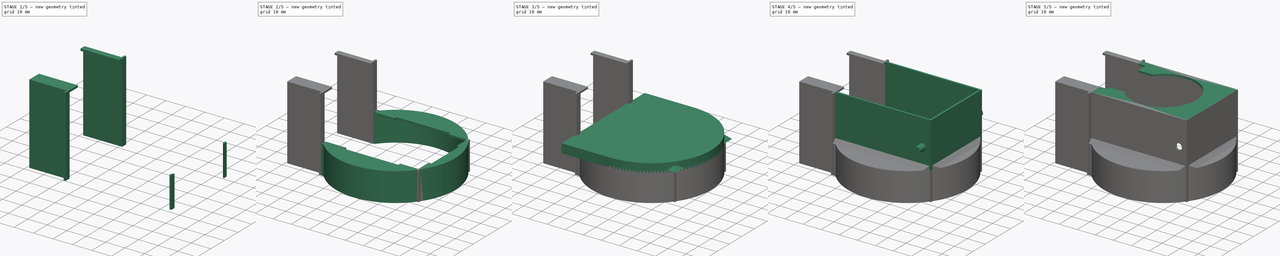
[diagram: build sequence overview — one tinted view per stage of 5, left to right]
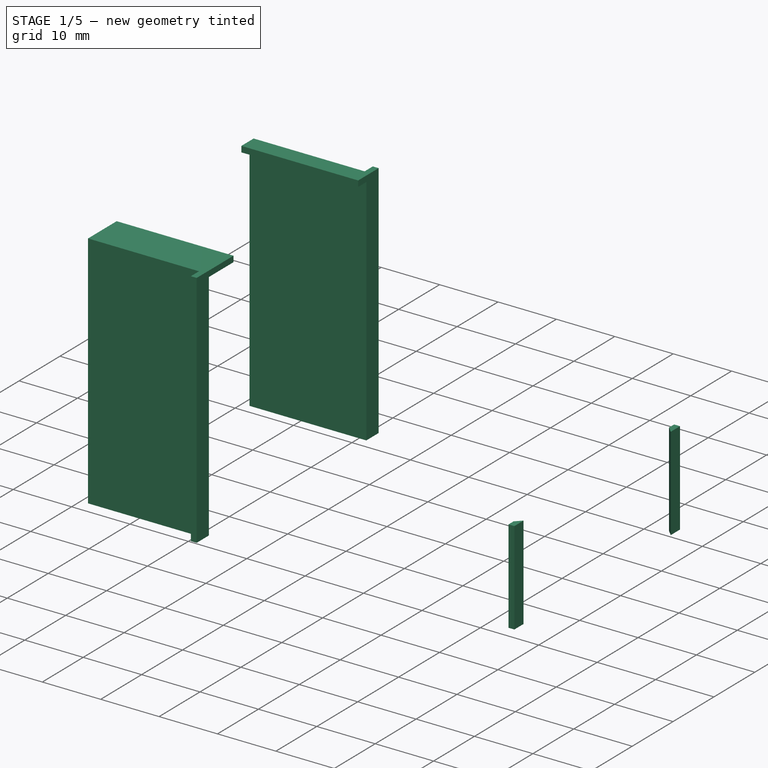
[diagram: stage 1 of 5 — iso view after this stage's code; geometry added in this stage tinted green]
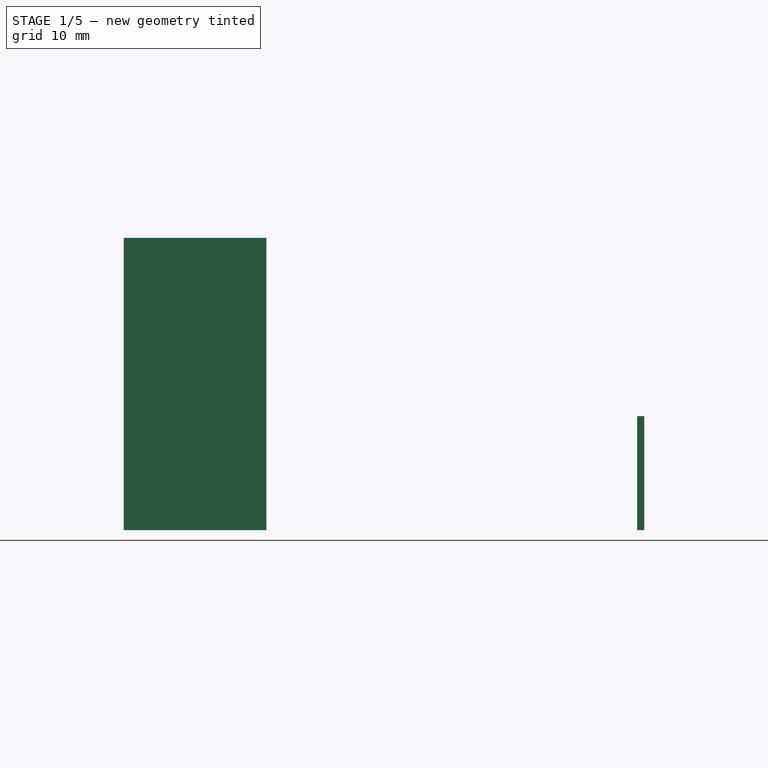
[diagram: stage 1 of 5 — front view after this stage's code; geometry added in this stage tinted green]
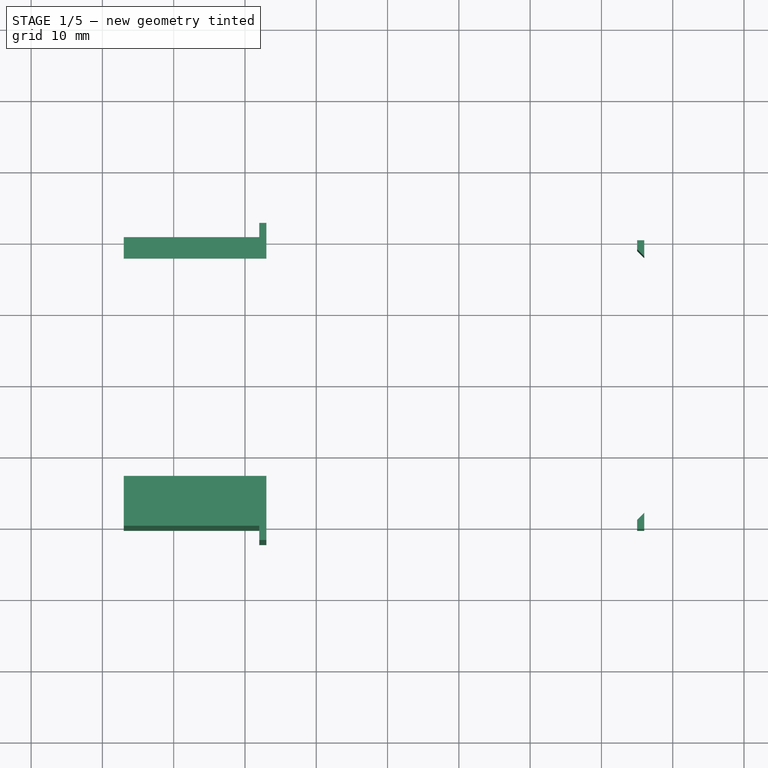
[diagram: stage 1 of 5 — top view after this stage's code; geometry added in this stage tinted green]
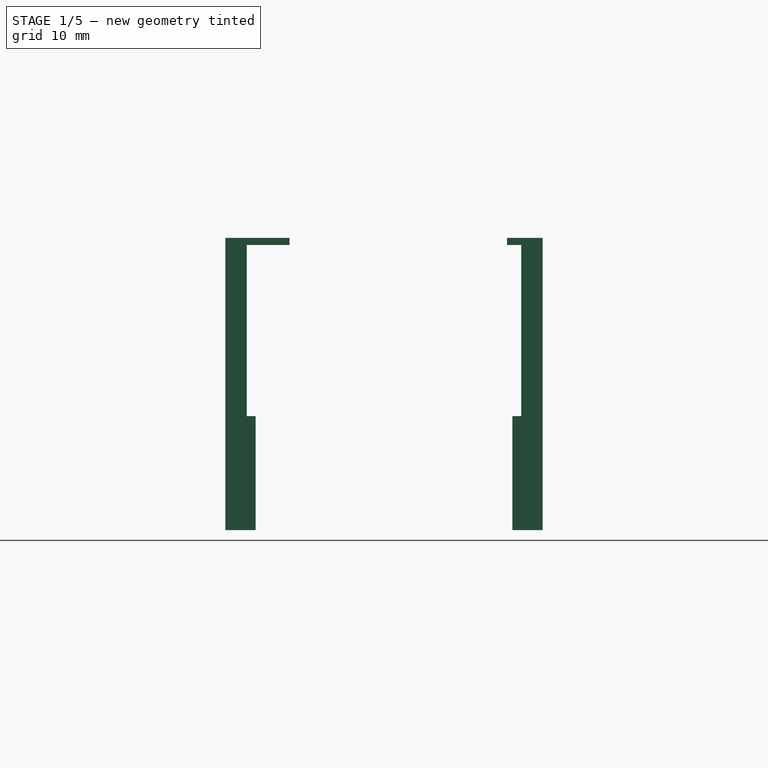
[diagram: stage 1 of 5 — right view after this stage's code; geometry added in this stage tinted green]
FCSTD DOCUMENT  (FreeCAD 0.19R24291 (Git))
Label: shroud
License: All rights reserved
LicenseURL: http://en.wikipedia.org/wiki/All_rights_reserved
objects: Sketcher::SketchObject×12, Part::Extrusion×10, Part::Compound×2, Part::Cut×1, Part::Sweep×1, Part::MultiCommon×1
note: 27 computed .brp shape members not serialized (recipe doc carries the construction recipe); baked Part::Feature solids carry a one-line shape summary decoded from their .brp

FEATURE [Sketcher::SketchObject] Sketch009
  FullyConstrained = true
  Placement = pos=(0,0,0) rot=(-1,0,0;3.14159rad)
  sketch-geometry (8):
    g0: LineSegment StartX=25 StartY=20.25 StartZ=0 EndX=26 EndY=20.25 EndZ=0
    g1: LineSegment StartX=26 StartY=20.25 StartZ=0 EndX=26 EndY=18 EndZ=0
    g2: LineSegment StartX=26 StartY=18 StartZ=0 EndX=25 EndY=19 EndZ=0
    g3: LineSegment StartX=25 StartY=19 StartZ=0 EndX=25 EndY=20.25 EndZ=0
    g4: LineSegment StartX=25 StartY=-19 StartZ=0 EndX=26 EndY=-18 EndZ=0
    g5: LineSegment StartX=26 StartY=-18 StartZ=0 EndX=26 EndY=-20.25 EndZ=0
    g6: LineSegment StartX=26 StartY=-20.25 StartZ=0 EndX=25 EndY=-20.25 EndZ=0
    g7: LineSegment StartX=25 StartY=-20.25 StartZ=0 EndX=25 EndY=-19 EndZ=0
  constraints (24):
    c: Coincident(g0,g1)
    c: Coincident(g1,g2)
    c: Coincident(g2,g3)
    c: Coincident(g3,g0)
    c: Horizontal(g0)
    c: Vertical(g1)
    c: Vertical(g3)
    c: Coincident(g4,g5)
    c: Coincident(g5,g6)
    c: Coincident(g6,g7)
    c: Coincident(g7,g4)
    c: Horizontal(g6)
    c: Vertical(g5)
    c: Vertical(g7)
    c: DistanceY(g5) = -20.25
    c: DistanceY(g0) = 20.25
    c: DistanceX(g0,g0) = 1
    c: DistanceX(g1) = 26
    c: Vertical(g4,g1)
    c: Vertical(g4,g2)
    c: DistanceY(g2) = 19
    c: DistanceY(g2,g2) = 1
    c: DistanceY(g7,g7) = 1.25
    c: DistanceY(g4,g4) = 1
FEATURE [Part::Extrusion] Extrude007
  Base = -> Sketch009
  Dir = (0,0,-1)
  DirMode = 2
  FaceMakerClass = Part::FaceMakerBullseye
  LengthFwd = 0
  LengthRev = 16
  Solid = true
  Symmetric = false
FEATURE [Sketcher::SketchObject] Sketch010
  FullyConstrained = true
  Placement = pos=(-27,0,0) rot=(-0.57735,0.57735,0.57735;4.18879rad)
  sketch-geometry (12):
    g0: LineSegment StartX=-19.25 StartY=0 StartZ=0 EndX=-19.25 EndY=40 EndZ=0
    g1: LineSegment StartX=-19.25 StartY=40 StartZ=0 EndX=-17.25 EndY=40 EndZ=0
    g2: LineSegment StartX=-17.25 StartY=40 StartZ=0 EndX=-17.25 EndY=41 EndZ=0
    g3: LineSegment StartX=-17.25 StartY=41 StartZ=0 EndX=-20.25 EndY=41 EndZ=0
    g4: LineSegment StartX=-20.25 StartY=41 StartZ=0 EndX=-20.25 EndY=0 EndZ=0
    g5: LineSegment StartX=-20.25 StartY=0 StartZ=0 EndX=-19.25 EndY=0 EndZ=0
    g6: LineSegment StartX=19.25 StartY=0 StartZ=0 EndX=19.25 EndY=40 EndZ=0
    g7: LineSegment StartX=19.25 StartY=40 StartZ=0 EndX=13.25 EndY=40 EndZ=0
    g8: LineSegment StartX=13.25 StartY=40 StartZ=0 EndX=13.25 EndY=41 EndZ=0
    g9: LineSegment StartX=13.25 StartY=41 StartZ=0 EndX=20.25 EndY=41 EndZ=0
    g10: LineSegment StartX=20.25 StartY=41 StartZ=0 EndX=20.25 EndY=0 EndZ=0
    g11: LineSegment StartX=20.25 StartY=0 StartZ=0 EndX=19.25 EndY=0 EndZ=0
  constraints (36):
    c: Vertical(g0)
    c: Coincident(g0,g1)
    c: Horizontal(g1)
    c: Coincident(g1,g2)
    c: Vertical(g2)
    c: Coincident(g2,g3)
    c: Horizontal(g3)
    c: Coincident(g3,g4)
    c: Vertical(g4)
    c: Coincident(g4,g5)
    c: Coincident(g5,g0)
    c: Vertical(g6)
    c: Coincident(g6,g7)
    c: Horizontal(g7)
    c: Coincident(g7,g8)
    c: Vertical(g8)
    c: Coincident(g8,g9)
    c: Horizontal(g9)
    c: Coincident(g9,g10)
    c: Vertical(g10)
    c: Coincident(g10,g11)
    c: Coincident(g11,g6)
    c: DistanceX(g0) = -19.25
    c: DistanceX(g5,g5) = 1
    c: DistanceY(g2,g2) = 1
    c: DistanceX(g6) = 19.25
    c: DistanceX(g11,g11) = 1
    c: Horizontal(g7,g1)
    c: Horizontal(g2,g8)
    c: DistanceX(g7,g7) = 6
    c: DistanceX(g1,g1) = 2
    c: Horizontal(g6,g0)
    c: Horizontal(g5)
    c: Horizontal(g11)
    c: DistanceY(g1) = 40
    c: PointOnObject(g0,g-1)
FEATURE [Part::Extrusion] Extrude008
  Base = -> Sketch010
  Dir = (-1,2e-16,-2e-16)
  DirMode = 2
  FaceMakerClass = Part::FaceMakerBullseye
  LengthFwd = 20
  LengthRev = 0
  Solid = true
  Symmetric = false
FEATURE [Sketcher::SketchObject] Sketch011
  FullyConstrained = true
  sketch-geometry (8):
    g0: LineSegment StartX=-27 StartY=19.25 StartZ=0 EndX=-27 EndY=22.25 EndZ=0
    g1: LineSegment StartX=-28 StartY=19.25 StartZ=0 EndX=-27 EndY=19.25 EndZ=0
    g2: LineSegment StartX=-27 StartY=-19.25 StartZ=0 EndX=-27 EndY=-22.25 EndZ=0
    g3: LineSegment StartX=-28 StartY=-19.25 StartZ=0 EndX=-27 EndY=-19.25 EndZ=0
    g4: LineSegment StartX=-28 StartY=19.25 StartZ=0 EndX=-28 EndY=22.25 EndZ=0
    g5: LineSegment StartX=-28 StartY=22.25 StartZ=0 EndX=-27 EndY=22.25 EndZ=0
    g6: LineSegment StartX=-28 StartY=-19.25 StartZ=0 EndX=-28 EndY=-22.25 EndZ=0
    g7: LineSegment StartX=-28 StartY=-22.25 StartZ=0 EndX=-27 EndY=-22.25 EndZ=0
  constraints (24):
    c: Vertical(g0)
    c: Coincident(g1,g0)
    c: Horizontal(g1)
    c: DistanceY(g0) = 19.25
    c: DistanceY(g0,g0) = 3
    c: DistanceX(g1,g1) = 1
    c: DistanceX(g0) = -27
    c: Vertical(g2)
    c: Coincident(g3,g2)
    c: Horizontal(g3)
    c: DistanceY(g2,g2) = 3
    c: DistanceY(g2) = -19.25
    c: Vertical(g0,g2)
    c: Vertical(g1,g3)
    c: Coincident(g1,g4)
    c: Vertical(g4)
    c: Coincident(g4,g5)
    c: Coincident(g5,g0)
    c: Horizontal(g5)
    c: Coincident(g3,g6)
    c: Vertical(g6)
    c: Coincident(g6,g7)
    c: Coincident(g7,g2)
    c: Horizontal(g7)
FEATURE [Part::Extrusion] Extrude009
  Base = -> Sketch011
  Dir = (0,0,1)
  DirMode = 2
  FaceMakerClass = Part::FaceMakerBullseye
  LengthFwd = 41
  LengthRev = 0
  Solid = true
  Symmetric = false
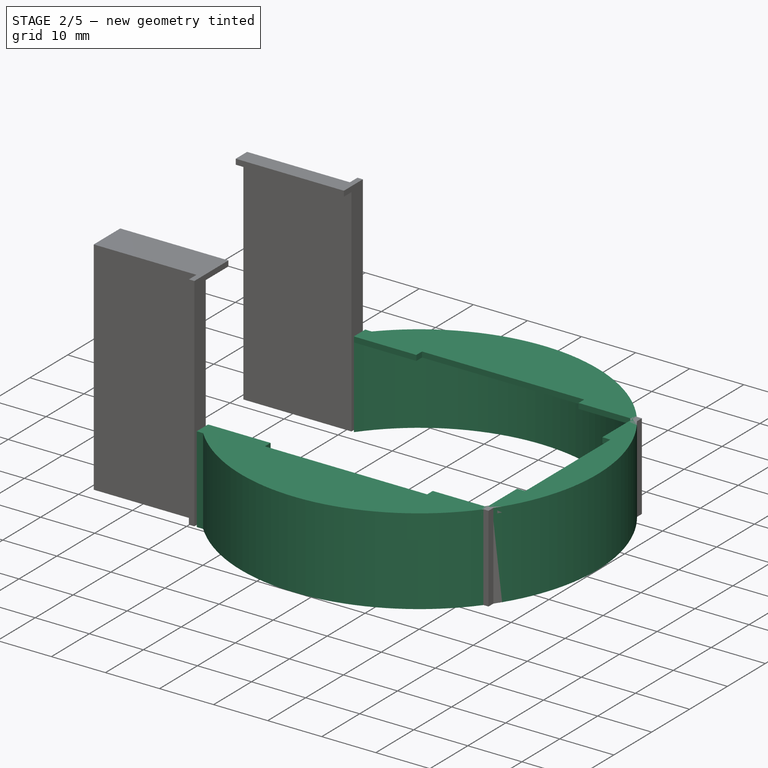
[diagram: stage 2 of 5 — iso view after this stage's code; geometry added in this stage tinted green]
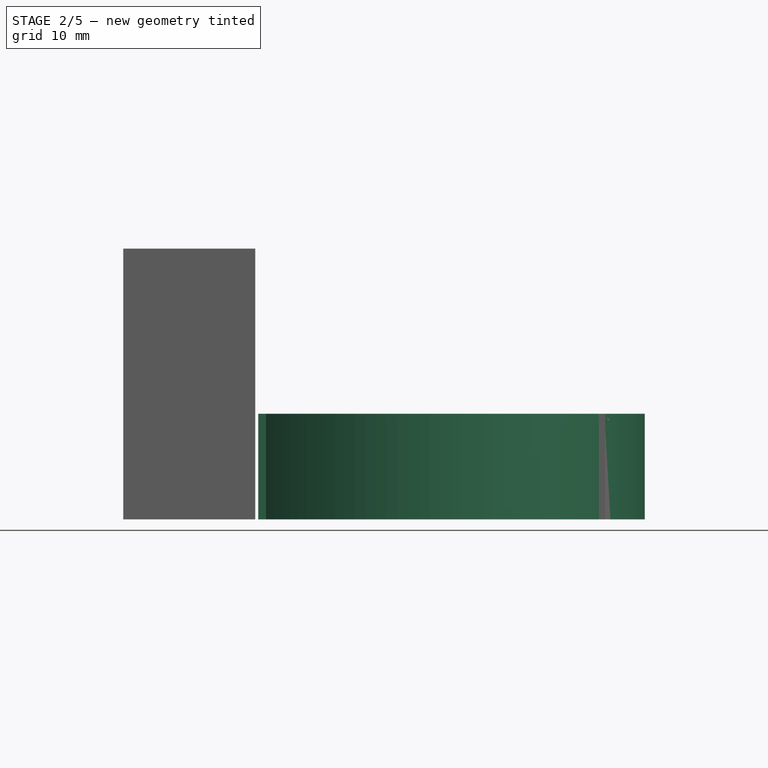
[diagram: stage 2 of 5 — front view after this stage's code; geometry added in this stage tinted green]
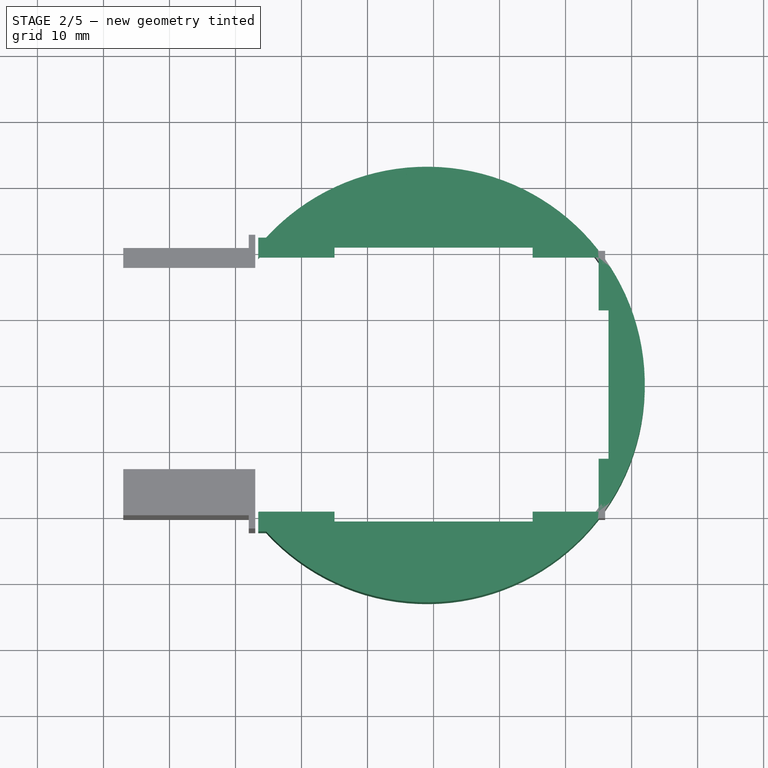
[diagram: stage 2 of 5 — top view after this stage's code; geometry added in this stage tinted green]
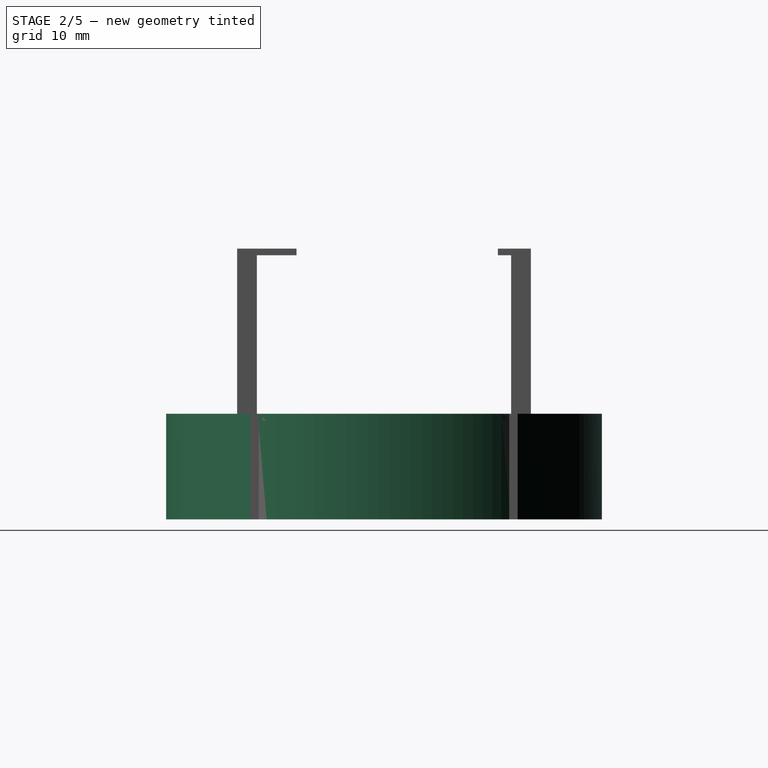
[diagram: stage 2 of 5 — right view after this stage's code; geometry added in this stage tinted green]
FEATURE [Sketcher::SketchObject] Sketch
  FullyConstrained = true
  sketch-geometry (6):
    g0: ArcOfCircle CenterX=-1 CenterY=0 CenterZ=0 NormalX=0 NormalY=0 NormalZ=1 AngleXU=0 Radius=32 StartAngle=3.78705 EndAngle=8.77932
    g1: ArcOfCircle CenterX=-1 CenterY=0 CenterZ=0 NormalX=0 NormalY=0 NormalZ=1 AngleXU=0 Radius=33 StartAngle=3.88153 EndAngle=8.68484
    g2: LineSegment StartX=-26.5624 StartY=22.25 StartZ=0 EndX=-26.5624 EndY=19.25 EndZ=0
    g3: LineSegment StartX=-26.5624 StartY=-22.25 StartZ=0 EndX=-26.5624 EndY=-19.25 EndZ=0
    g4: LineSegment StartX=-26.5624 StartY=22.25 StartZ=0 EndX=-25.3708 EndY=22.25 EndZ=0
    g5: LineSegment StartX=-26.5624 StartY=-22.25 StartZ=0 EndX=-25.3708 EndY=-22.25 EndZ=0
  constraints (19):
    c: Radius(g0) = 32
    c: DistanceY(g0,g0) = 38.5
    c: Vertical(g0,g0)
    c: Radius(g1) = 33
    c: Coincident(g2,g0)
    c: Coincident(g3,g0)
    c: PointOnObject(g0,g-1)
    c: DistanceX(g0) = -1
    c: Coincident(g1,g0)
    c: Vertical(g3)
    c: Vertical(g2)
    c: DistanceY(g2,g2) = 3
    c: Coincident(g4,g2)
    c: Coincident(g4,g1)
    c: Horizontal(g4)
    c: DistanceY(g3,g3) = 3
    c: Coincident(g5,g3)
    c: Coincident(g5,g1)
    c: Horizontal(g5)
FEATURE [Part::Extrusion] Extrude
  Base = -> Sketch
  Dir = (0,0,1)
  DirMode = 2
  FaceMakerClass = Part::FaceMakerBullseye
  LengthFwd = 16
  LengthRev = 0
  Solid = true
  Symmetric = false
FEATURE [Sketcher::SketchObject] Sketch001
  FullyConstrained = true
  Placement = pos=(0,0,15) rot=(0,0,1;0rad)
  sketch-geometry (18):
    g0: ArcOfCircle CenterX=-1 CenterY=0 CenterZ=0 NormalX=0 NormalY=0 NormalZ=1 AngleXU=0 Radius=33 StartAngle=3.82926 EndAngle=8.73711
    g1: LineSegment StartX=-15 StartY=19.25 StartZ=0 EndX=-15 EndY=20.75 EndZ=0
    g2: LineSegment StartX=-15 StartY=20.75 StartZ=0 EndX=15 EndY=20.75 EndZ=0
    g3: LineSegment StartX=15 StartY=20.75 StartZ=0 EndX=15 EndY=19.25 EndZ=0
    g4: LineSegment StartX=-26.5 StartY=19.25 StartZ=0 EndX=-15 EndY=19.25 EndZ=0
    g5: LineSegment StartX=15 StartY=19.25 StartZ=0 EndX=25 EndY=19.25 EndZ=0
    g6: LineSegment StartX=25 StartY=-19.25 StartZ=0 EndX=15 EndY=-19.25 EndZ=0
    g7: LineSegment StartX=15 StartY=-19.25 StartZ=0 EndX=15 EndY=-20.75 EndZ=0
    g8: LineSegment StartX=15 StartY=-20.75 StartZ=0 EndX=-15 EndY=-20.75 EndZ=0
    g9: LineSegment StartX=-15 StartY=-20.75 StartZ=0 EndX=-15 EndY=-19.25 EndZ=0
    g10: LineSegment StartX=-15 StartY=-19.25 StartZ=0 EndX=-26.5 EndY=-19.25 EndZ=0
    g11: LineSegment StartX=25 StartY=19.25 StartZ=0 EndX=25 EndY=11.25 EndZ=0
    g12: LineSegment StartX=25 StartY=11.25 StartZ=0 EndX=26.5 EndY=11.25 EndZ=0
    g13: LineSegment StartX=26.5 StartY=11.25 StartZ=0 EndX=26.5 EndY=-11.25 EndZ=0
    g14: LineSegment StartX=26.5 StartY=-11.25 StartZ=0 EndX=25 EndY=-11.25 EndZ=0
    g15: LineSegment StartX=25 StartY=-11.25 StartZ=0 EndX=25 EndY=-19.25 EndZ=0
    g16: LineSegment StartX=-26.5 StartY=20.9464 StartZ=0 EndX=-26.5 EndY=19.25 EndZ=0
    g17: LineSegment StartX=-26.5 StartY=-19.25 StartZ=0 EndX=-26.5 EndY=-20.9464 EndZ=0
  constraints (55):
    c: Radius(g0) = 33
    c: Vertical(g0,g0)
    c: Vertical(g1)
    c: Coincident(g1,g2)
    c: Horizontal(g2)
    c: Coincident(g2,g3)
    c: Vertical(g3)
    c: Coincident(g4,g1)
    c: Horizontal(g4)
    c: Coincident(g5,g3)
    c: Horizontal(g5)
    c: Horizontal(g3,g1)
    c: DistanceY(g1,g1) = 1.5
    c: Horizontal(g6)
    c: Coincident(g6,g7)
    c: Vertical(g7)
    c: Coincident(g7,g8)
    c: Horizontal(g8)
    c: Coincident(g8,g9)
    c: Vertical(g9)
    c: Coincident(g9,g10)
    c: Horizontal(g10)
    c: Horizontal(g9,g6)
    c: DistanceY(g9,g9) = 1.5
    c: Vertical(g9,g1)
    c: Vertical(g3,g6)
    c: Coincident(g5,g11)
    c: Vertical(g11)
    c: Coincident(g11,g12)
    c: Coincident(g12,g13)
    c: Vertical(g13)
    c: Coincident(g13,g14)
    c: Coincident(g14,g15)
    c: Coincident(g15,g6)
    c: Vertical(g15)
    c: Horizontal(g12)
    c: Horizontal(g14)
    c: DistanceX(g14,g14) = 1.5
    c: Vertical(g14,g11)
    c: DistanceY(g11,g11) = 8
    c: DistanceY(g15,g15) = 8
    c: PointOnObject(g0,g-1)
    c: DistanceX(g0) = -1
    c: DistanceX(g0,g5) = 26
    c: DistanceX(g5,g5) = 10
    c: DistanceX(g2,g2) = 30
    c: DistanceY(g3) = 19.25
    c: DistanceY(g6) = -19.25
    c: Coincident(g16,g0)
    c: Coincident(g16,g4)
    c: Vertical(g16)
    c: Coincident(g17,g10)
    c: Coincident(g17,g0)
    c: Vertical(g17)
    c: DistanceX(g4) = -26.5
FEATURE [Part::Extrusion] Extrude001
  Base = -> Sketch001
  Dir = (0,0,1)
  DirMode = 2
  FaceMakerClass = Part::FaceMakerBullseye
  LengthFwd = 1
  LengthRev = 0
  Solid = true
  Symmetric = false
FEATURE [Part::Compound] Compound001  label="bottom"
  Links = -> [Extrude001,Extrude,Extrude007]
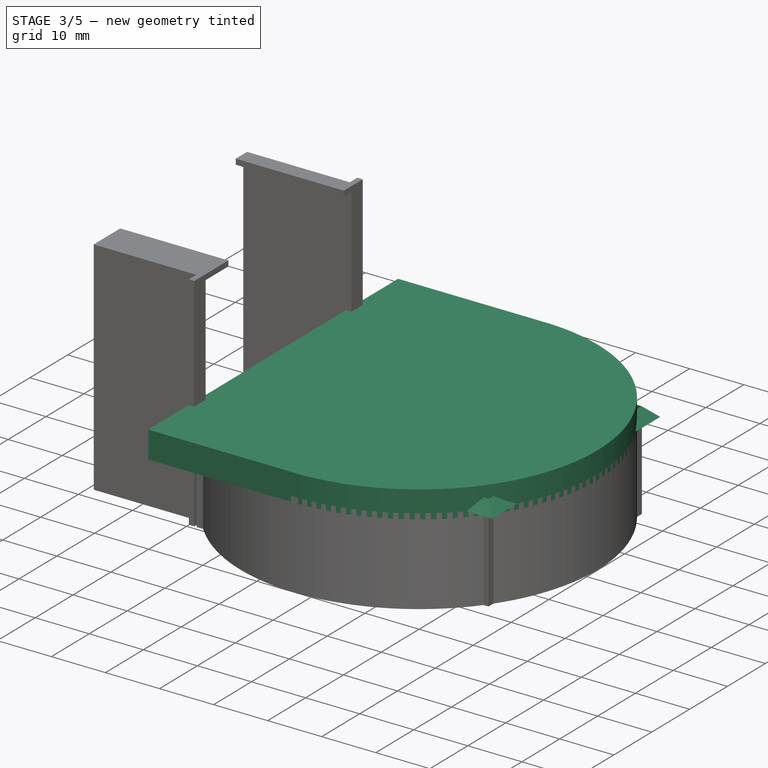
[diagram: stage 3 of 5 — iso view after this stage's code; geometry added in this stage tinted green]
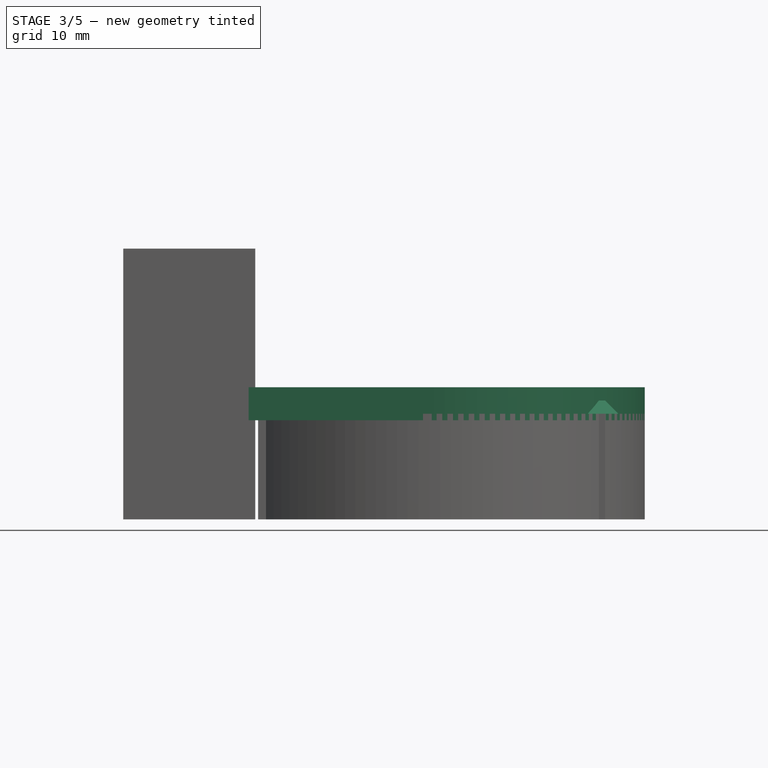
[diagram: stage 3 of 5 — front view after this stage's code; geometry added in this stage tinted green]
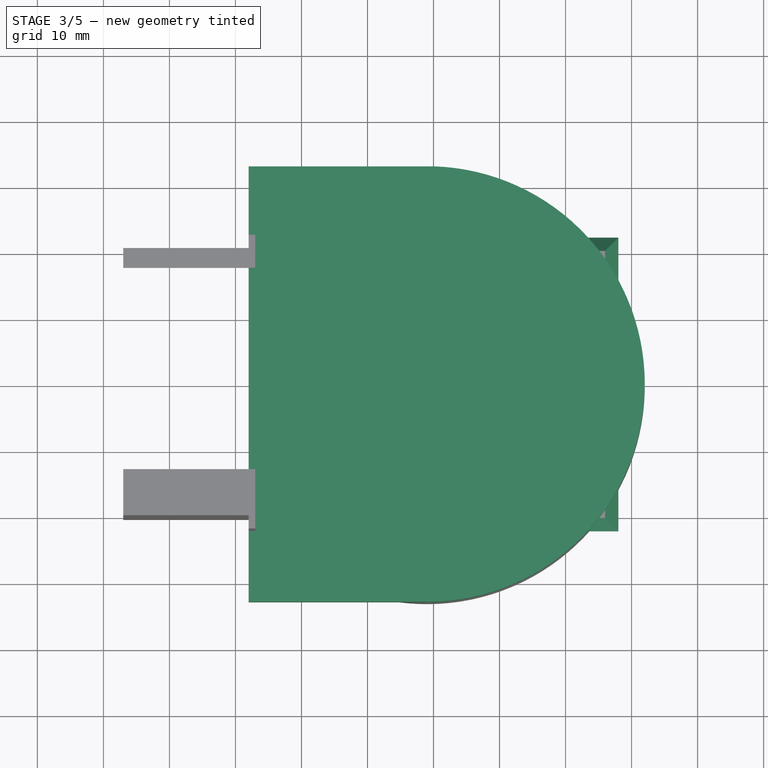
[diagram: stage 3 of 5 — top view after this stage's code; geometry added in this stage tinted green]
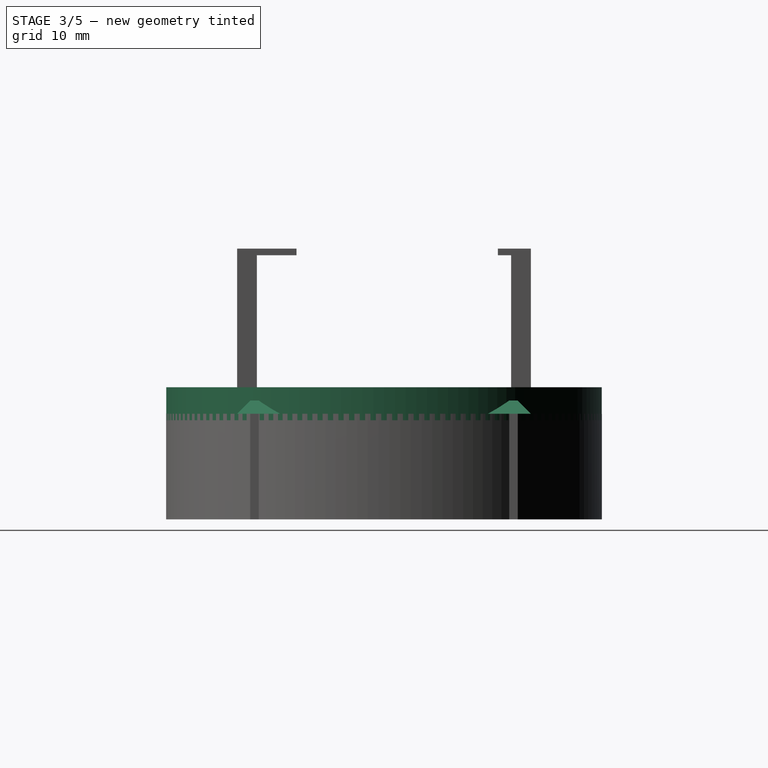
[diagram: stage 3 of 5 — right view after this stage's code; geometry added in this stage tinted green]
FEATURE [Sketcher::SketchObject] Sketch005  label="profile"
  FullyConstrained = true
  Placement = pos=(0,0,0) rot=(-1,0,0;4.71239rad)
  sketch-geometry (3):
    g0: LineSegment StartX=26 StartY=18 StartZ=0 EndX=28 EndY=16 EndZ=0
    g1: LineSegment StartX=28 StartY=16 StartZ=0 EndX=26 EndY=16 EndZ=0
    g2: LineSegment StartX=26 StartY=16 StartZ=0 EndX=26 EndY=18 EndZ=0
  constraints (9):
    c: Coincident(g0,g1)
    c: Horizontal(g1)
    c: Coincident(g1,g2)
    c: Coincident(g2,g0)
    c: Vertical(g2)
    c: DistanceX(g1) = 26
    c: DistanceY(g1) = 16
    c: DistanceY(g2,g2) = 2
    c: DistanceX(g1,g1) = 2
FEATURE [Sketcher::SketchObject] Sketch006  label="path"
  FullyConstrained = true
  Placement = pos=(0,0,16) rot=(0,0,1;0rad)
  expr: Constraints[8] = 40.5 / 2
  sketch-geometry (3):
    g0: LineSegment StartX=-27 StartY=20.25 StartZ=0 EndX=26 EndY=20.25 EndZ=0
    g1: LineSegment StartX=26 StartY=20.25 StartZ=0 EndX=26 EndY=-20.25 EndZ=0
    g2: LineSegment StartX=26 StartY=-20.25 StartZ=0 EndX=-27 EndY=-20.25 EndZ=0
  constraints (10):
    c: DistanceY(g2,g0) = 40.5
    c: Vertical(g0,g2)
    c: Coincident(g0,g1)
    c: Vertical(g1)
    c: Coincident(g1,g2)
    c: Horizontal(g2)
    c: Horizontal(g0)
    c: DistanceX(g0) = 26
    c: DistanceY(g0) = 20.25
    c: DistanceX(g0) = -27
FEATURE [Part::Sweep] Sweep
  Frenet = false
  Sections = -> [Sketch005]
  Solid = true
  Spine = -> Sketch006
  Transition = 1
FEATURE [Sketcher::SketchObject] Sketch007
  FullyConstrained = true
  Placement = pos=(0,0,15) rot=(0,0,1;0rad)
  sketch-geometry (4):
    g0: ArcOfCircle CenterX=-1 CenterY=0 CenterZ=0 NormalX=0 NormalY=0 NormalZ=1 AngleXU=0 Radius=33 StartAngle=4.7427 EndAngle=7.82367
    g1: LineSegment StartX=0 StartY=32.9848 StartZ=0 EndX=-28 EndY=32.9848 EndZ=0
    g2: LineSegment StartX=-28 StartY=32.9848 StartZ=0 EndX=-28 EndY=-32.9848 EndZ=0
    g3: LineSegment StartX=-28 StartY=-32.9848 StartZ=0 EndX=0 EndY=-32.9848 EndZ=0
  constraints (13):
    c: PointOnObject(g0,g-1)
    c: PointOnObject(g0,g-2)
    c: Radius(g0) = 33
    c: DistanceX(g0) = -1
    c: Coincident(g1,g0)
    c: Horizontal(g1)
    c: Coincident(g2,g1)
    c: Vertical(g2)
    c: Coincident(g3,g2)
    c: Coincident(g3,g0)
    c: Horizontal(g3)
    c: DistanceX(g3,g3) = 28
    c: PointOnObject(g0,g-2)
FEATURE [Part::Extrusion] Extrude005
  Base = -> Sketch007
  Dir = (0,0,1)
  DirMode = 2
  FaceMakerClass = Part::FaceMakerBullseye
  LengthFwd = 5
  LengthRev = 0
  Solid = true
  Symmetric = false
FEATURE [Sketcher::SketchObject] Sketch008
  FullyConstrained = true
  Placement = pos=(0,0,15) rot=(0,0,1;0rad)
  sketch-geometry (12):
    g0: LineSegment StartX=-14.5 StartY=19.25 StartZ=0 EndX=14.5 EndY=19.25 EndZ=0
    g1: LineSegment StartX=14.5 StartY=19.25 StartZ=0 EndX=14.5 EndY=20.25 EndZ=0
    g2: LineSegment StartX=14.5 StartY=20.25 StartZ=0 EndX=-14.5 EndY=20.25 EndZ=0
    g3: LineSegment StartX=-14.5 StartY=20.25 StartZ=0 EndX=-14.5 EndY=19.25 EndZ=0
    g4: LineSegment StartX=25 StartY=10.75 StartZ=0 EndX=26 EndY=10.75 EndZ=0
    g5: LineSegment StartX=26 StartY=10.75 StartZ=0 EndX=26 EndY=-10.75 EndZ=0
    g6: LineSegment StartX=26 StartY=-10.75 StartZ=0 EndX=25 EndY=-10.75 EndZ=0
    g7: LineSegment StartX=25 StartY=-10.75 StartZ=0 EndX=25 EndY=10.75 EndZ=0
    g8: LineSegment StartX=-14.5 StartY=-19.25 StartZ=0 EndX=14.5 EndY=-19.25 EndZ=0
    g9: LineSegment StartX=14.5 StartY=-19.25 StartZ=0 EndX=14.5 EndY=-20.25 EndZ=0
    g10: LineSegment StartX=14.5 StartY=-20.25 StartZ=0 EndX=-14.5 EndY=-20.25 EndZ=0
    g11: LineSegment StartX=-14.5 StartY=-20.25 StartZ=0 EndX=-14.5 EndY=-19.25 EndZ=0
  constraints (36):
    c: Coincident(g0,g1)
    c: Coincident(g1,g2)
    c: Coincident(g2,g3)
    c: Coincident(g3,g0)
    c: Horizontal(g0)
    c: Horizontal(g2)
    c: Vertical(g1)
    c: Vertical(g3)
    c: Coincident(g4,g5)
    c: Coincident(g5,g6)
    c: Coincident(g6,g7)
    c: Coincident(g7,g4)
    c: Horizontal(g4)
    c: Horizontal(g6)
    c: Vertical(g5)
    c: Vertical(g7)
    c: Coincident(g8,g9)
    c: Coincident(g9,g10)
    c: Coincident(g10,g11)
    c: Coincident(g11,g8)
    c: Horizontal(g8)
    c: Horizontal(g10)
    c: Vertical(g9)
    c: Vertical(g11)
    c: Vertical(g0,g8)
    c: Vertical(g8,g0)
    c: DistanceY(g1,g1) = 1
    c: DistanceY(g9,g9) = 1
    c: DistanceX(g6,g6) = 1
    c: DistanceY(g0) = 19.25
    c: DistanceY(g8) = -19.25
    c: DistanceX(g0) = -14.5
    c: DistanceX(g0) = 14.5
    c: DistanceY(g6) = -10.75
    c: DistanceY(g4) = 10.75
    c: DistanceX(g4) = 25
FEATURE [Part::Extrusion] Extrude006
  Base = -> Sketch008
  Dir = (0,0,1)
  DirMode = 2
  FaceMakerClass = Part::FaceMakerBullseye
  LengthFwd = 1
  LengthRev = 0
  Solid = true
  Symmetric = false
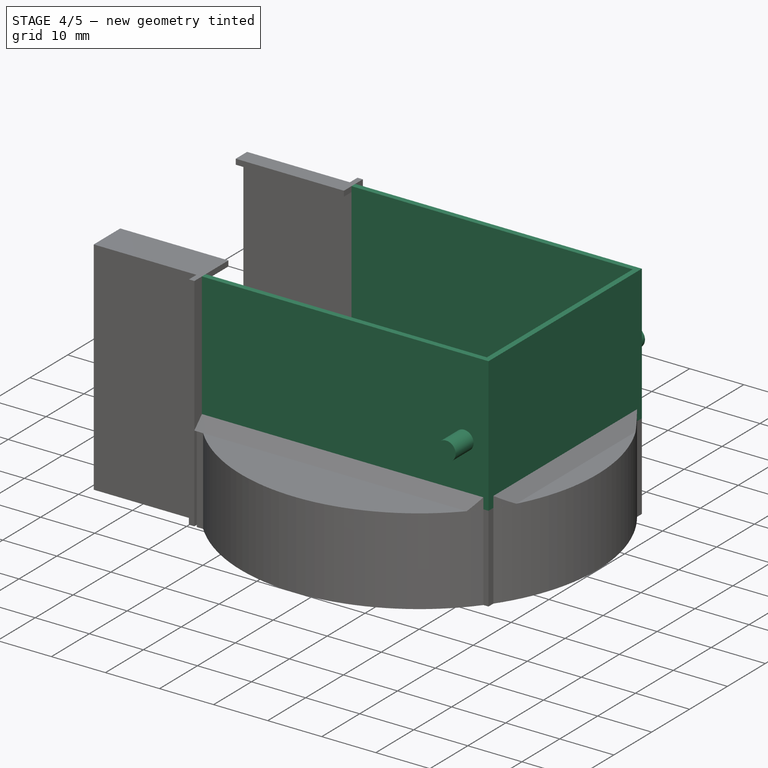
[diagram: stage 4 of 5 — iso view after this stage's code; geometry added in this stage tinted green]
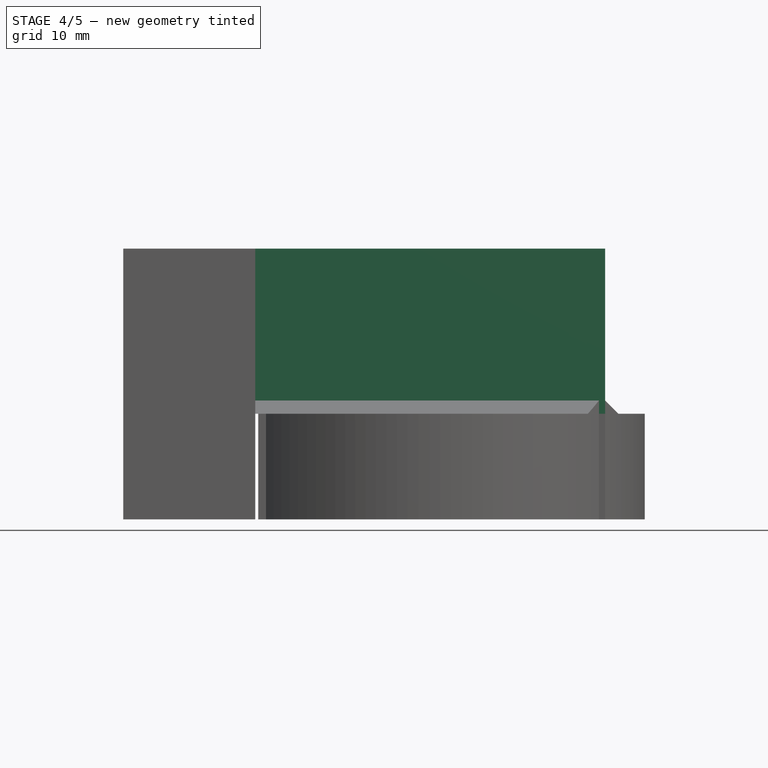
[diagram: stage 4 of 5 — front view after this stage's code; geometry added in this stage tinted green]
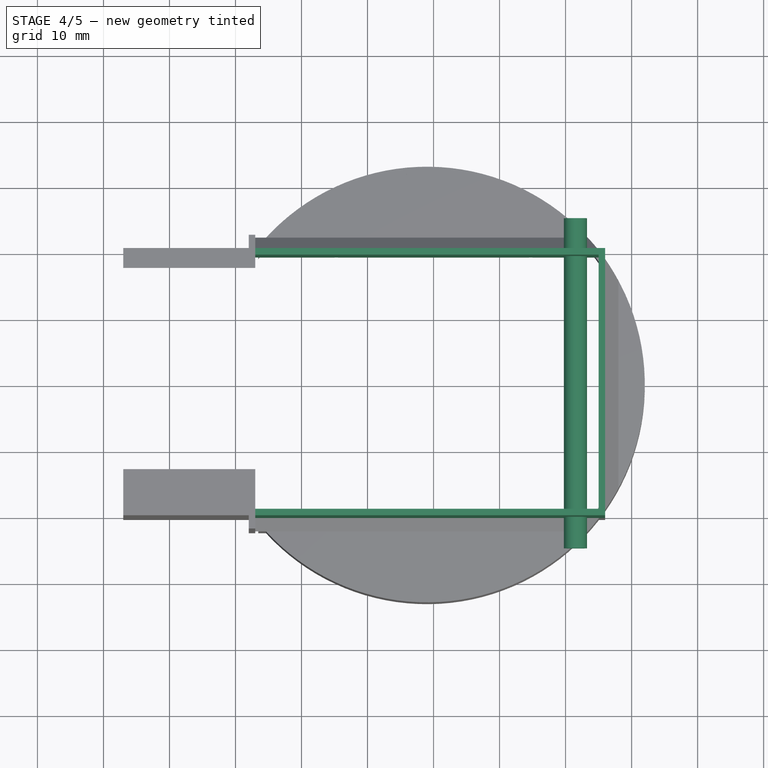
[diagram: stage 4 of 5 — top view after this stage's code; geometry added in this stage tinted green]
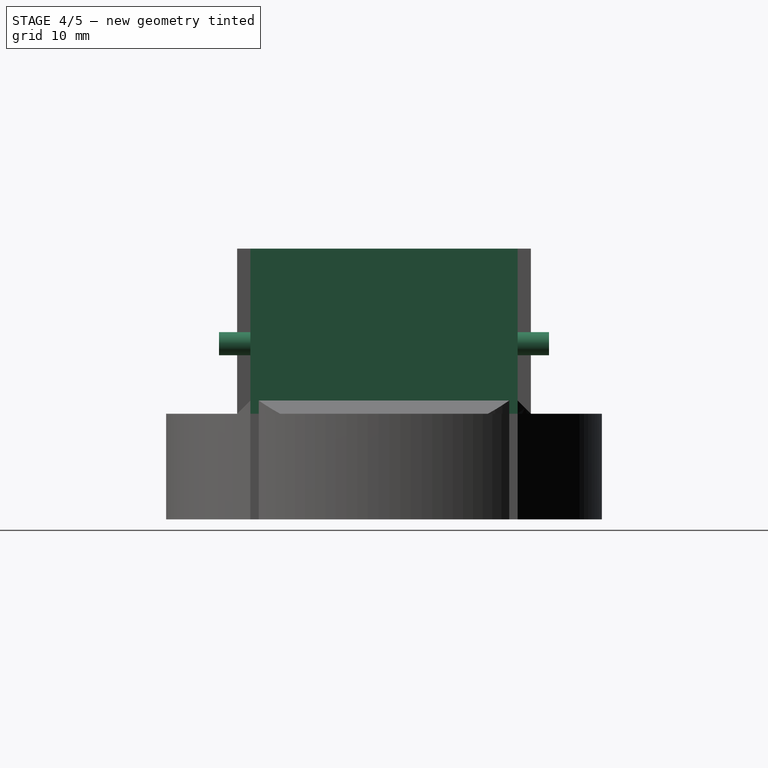
[diagram: stage 4 of 5 — right view after this stage's code; geometry added in this stage tinted green]
FEATURE [Sketcher::SketchObject] Sketch002
  FullyConstrained = true
  Placement = pos=(0,0,16) rot=(0,0,1;0rad)
  expr: Constraints[17] = 38.5 / 2
  sketch-geometry (8):
    g0: LineSegment StartX=-27 StartY=19.25 StartZ=0 EndX=25 EndY=19.25 EndZ=0
    g1: LineSegment StartX=25 StartY=19.25 StartZ=0 EndX=25 EndY=-19.25 EndZ=0
    g2: LineSegment StartX=25 StartY=-19.25 StartZ=0 EndX=-27 EndY=-19.25 EndZ=0
    g3: LineSegment StartX=-27 StartY=19.25 StartZ=0 EndX=-27 EndY=20.25 EndZ=0
    g4: LineSegment StartX=-27 StartY=20.25 StartZ=0 EndX=26 EndY=20.25 EndZ=0
    g5: LineSegment StartX=26 StartY=20.25 StartZ=0 EndX=26 EndY=-20.25 EndZ=0
    g6: LineSegment StartX=26 StartY=-20.25 StartZ=0 EndX=-27 EndY=-20.25 EndZ=0
    g7: LineSegment StartX=-27 StartY=-20.25 StartZ=0 EndX=-27 EndY=-19.25 EndZ=0
  constraints (24):
    c: DistanceY(g2,g0) = 38.5
    c: Vertical(g0,g2)
    c: Coincident(g0,g1)
    c: Vertical(g1)
    c: Coincident(g1,g2)
    c: Horizontal(g2)
    c: Horizontal(g0)
    c: DistanceX(g0) = 25
    c: Coincident(g0,g3)
    c: Coincident(g3,g4)
    c: Horizontal(g4)
    c: Coincident(g4,g5)
    c: Vertical(g5)
    c: Coincident(g5,g6)
    c: Horizontal(g6)
    c: Coincident(g6,g7)
    c: Coincident(g7,g2)
    c: DistanceY(g0) = 19.25
    c: DistanceY(g3,g3) = 1
    c: DistanceY(g7,g7) = 1
    c: Vertical(g7)
    c: Vertical(g3)
    c: DistanceX(g0) = -27
    c: DistanceX(g0,g4) = 1
FEATURE [Part::Extrusion] Extrude002
  Base = -> Sketch002
  Dir = (0,0,1)
  DirMode = 2
  FaceMakerClass = Part::FaceMakerBullseye
  LengthFwd = 25
  LengthRev = 0
  Solid = true
  Symmetric = false
FEATURE [Sketcher::SketchObject] Sketch003
  FullyConstrained = true
  Placement = pos=(0,0,0) rot=(-1,0,0;4.71239rad)
  expr: Constraints[1] = 3.5 / 2
  sketch-geometry (1):
    g0: Circle CenterX=21.5 CenterY=26.6 CenterZ=0 NormalX=0 NormalY=0 NormalZ=1 AngleXU=0 Radius=1.75
  constraints (3):
    c: DistanceY(g0) = 26.6
    c: Radius(g0) = 1.75
    c: DistanceX(g0) = 21.5
FEATURE [Part::Extrusion] Extrude003
  Base = -> Sketch003
  Dir = (0,-1,3e-16)
  DirMode = 2
  FaceMakerClass = Part::FaceMakerBullseye
  LengthFwd = 25
  LengthRev = 25
  Solid = true
  Symmetric = false
FEATURE [Part::MultiCommon] Common
  Shapes = -> [Extrude005,Sweep]
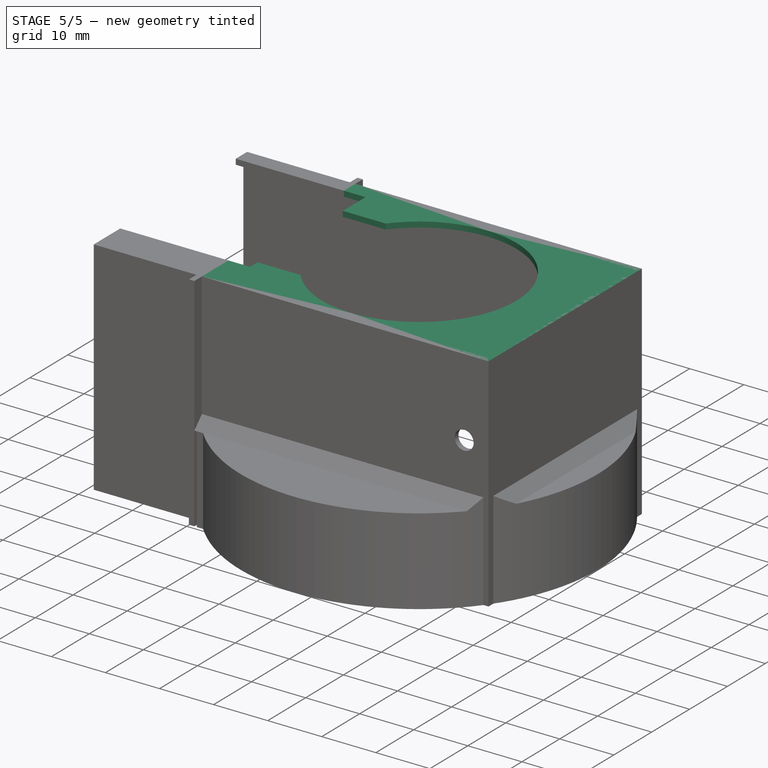
[diagram: stage 5 of 5 — iso view after this stage's code; geometry added in this stage tinted green]
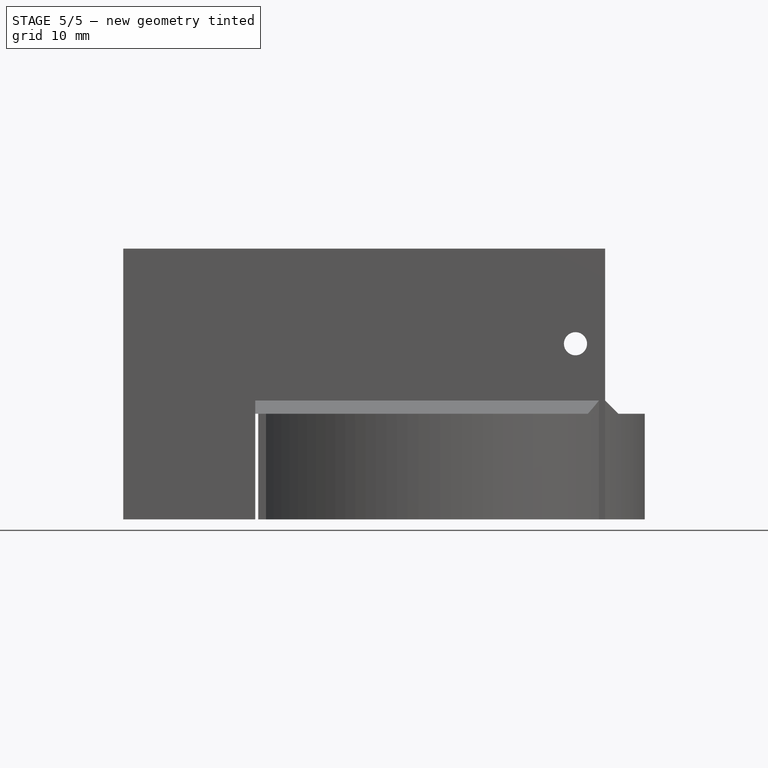
[diagram: stage 5 of 5 — front view after this stage's code; geometry added in this stage tinted green]
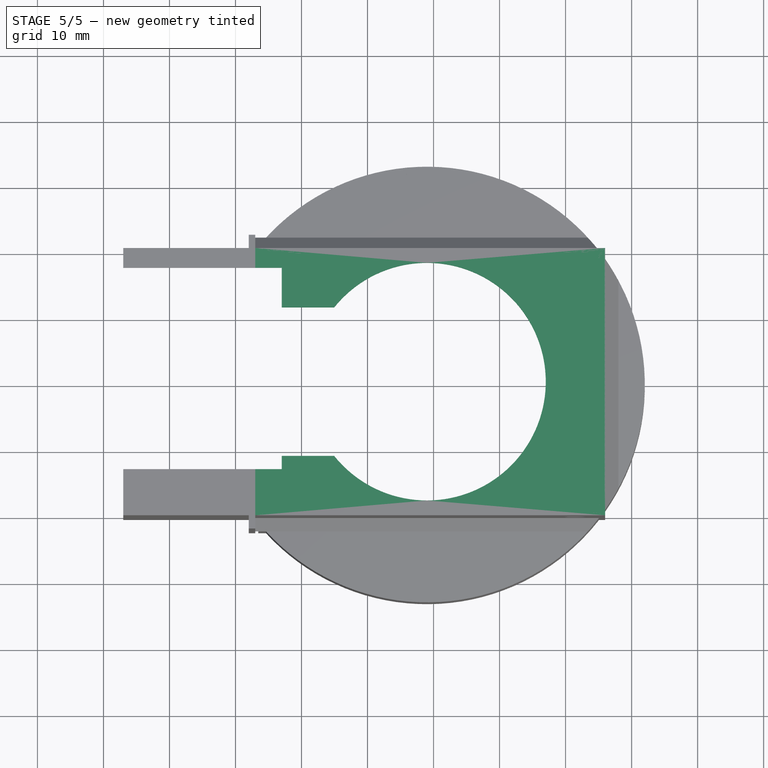
[diagram: stage 5 of 5 — top view after this stage's code; geometry added in this stage tinted green]
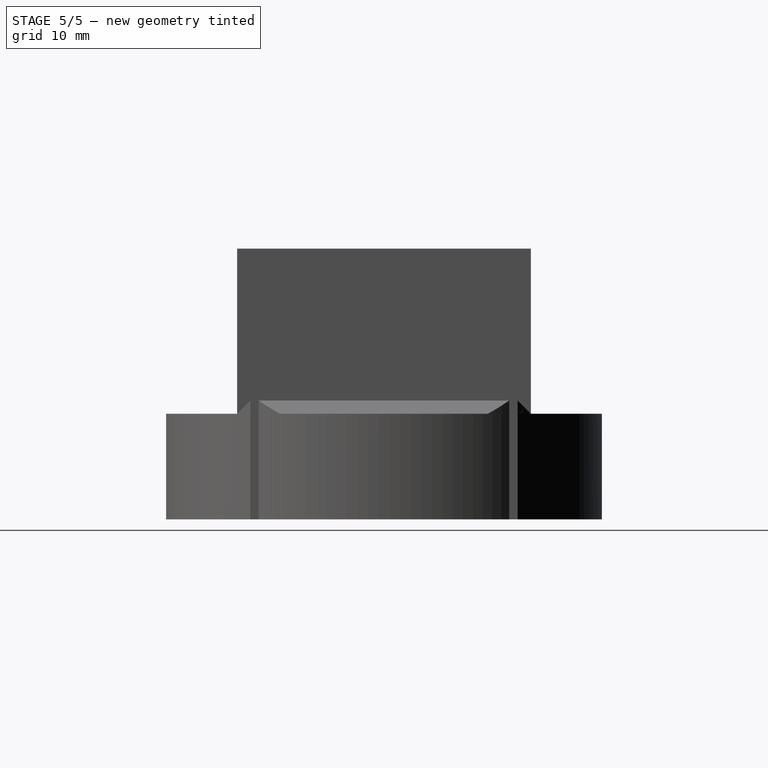
[diagram: stage 5 of 5 — right view after this stage's code; geometry added in this stage tinted green]
FEATURE [Sketcher::SketchObject] Sketch004
  FullyConstrained = false
  Placement = pos=(0,0,40) rot=(0,0,1;0rad)
  sketch-geometry (12):
    g0: LineSegment StartX=-27 StartY=20.25 StartZ=0 EndX=26 EndY=20.25 EndZ=0
    g1: LineSegment StartX=26 StartY=20.25 StartZ=0 EndX=26 EndY=-20.25 EndZ=0
    g2: LineSegment StartX=26 StartY=-20.25 StartZ=0 EndX=-27 EndY=-20.25 EndZ=0
    g3: ArcOfCircle CenterX=-1 CenterY=0 CenterZ=0 NormalX=0 NormalY=0 NormalZ=1 AngleXU=0 Radius=18 StartAngle=3.81672 EndAngle=8.74965
    g4: LineSegment StartX=-23 StartY=11.25 StartZ=0 EndX=-15.0512 EndY=11.25 EndZ=0
    g5: LineSegment StartX=-23 StartY=-11.25 StartZ=0 EndX=-15.0512 EndY=-11.25 EndZ=0
    g6: LineSegment StartX=-23 StartY=11.25 StartZ=0 EndX=-23 EndY=17.25 EndZ=0
    g7: LineSegment StartX=-23 StartY=17.25 StartZ=0 EndX=-27 EndY=17.25 EndZ=0
    g8: LineSegment StartX=-27 StartY=17.25 StartZ=0 EndX=-27 EndY=20.25 EndZ=0
    g9: LineSegment StartX=-23 StartY=-11.25 StartZ=0 EndX=-23 EndY=-13.25 EndZ=0
    g10: LineSegment StartX=-23 StartY=-13.25 StartZ=0 EndX=-27 EndY=-13.25 EndZ=0
    g11: LineSegment StartX=-27 StartY=-13.25 StartZ=0 EndX=-27 EndY=-20.25 EndZ=0
  constraints (36):
    c: Horizontal(g0)
    c: Vertical(g1)
    c: Horizontal(g2)
    c: DistanceX(g0) = 26
    c: DistanceY(g0) = 20.25
    c: DistanceY(g1) = -20.25
    c: Vertical(g0,g2)
    c: Radius(g3) = 18
    c: Coincident(g4,g3)
    c: Horizontal(g4)
    c: Coincident(g5,g3)
    c: Horizontal(g5)
    c: DistanceY(g2,g5) = 9
    c: PointOnObject(g3,g-1)
    c: DistanceX(g3) = -1
    c: Coincident(g2,g1)
    c: Coincident(g1,g0)
    c: Coincident(g4,g6)
    c: Vertical(g6)
    c: Coincident(g6,g7)
    c: Horizontal(g7)
    c: Coincident(g7,g8)
    c: Vertical(g8)
    c: Coincident(g5,g9)
    c: Vertical(g9)
    c: Coincident(g9,g10)
    c: Horizontal(g10)
    c: Coincident(g10,g11)
    c: Vertical(g11)
    c: DistanceX(g9) = -23
    c: Vertical(g5,g4)
    c: Coincident(g2,g11)
    c: Coincident(g0,g8)
    c: DistanceX(g2) = -27
    c: DistanceY(g10) = -13.25
    c: DistanceY(g8,g8) = 3
FEATURE [Part::Extrusion] Extrude004
  Base = -> Sketch004
  Dir = (0,0,1)
  DirMode = 2
  FaceMakerClass = Part::FaceMakerBullseye
  LengthFwd = 1
  LengthRev = 0
  Solid = true
  Symmetric = false
FEATURE [Part::Cut] Cut
  Base = -> Extrude002
  Tool = -> Extrude003
FEATURE [Part::Compound] Compound  label="top"
  Links = -> [Extrude006,Common,Cut,Extrude004,Extrude008,Extrude009]
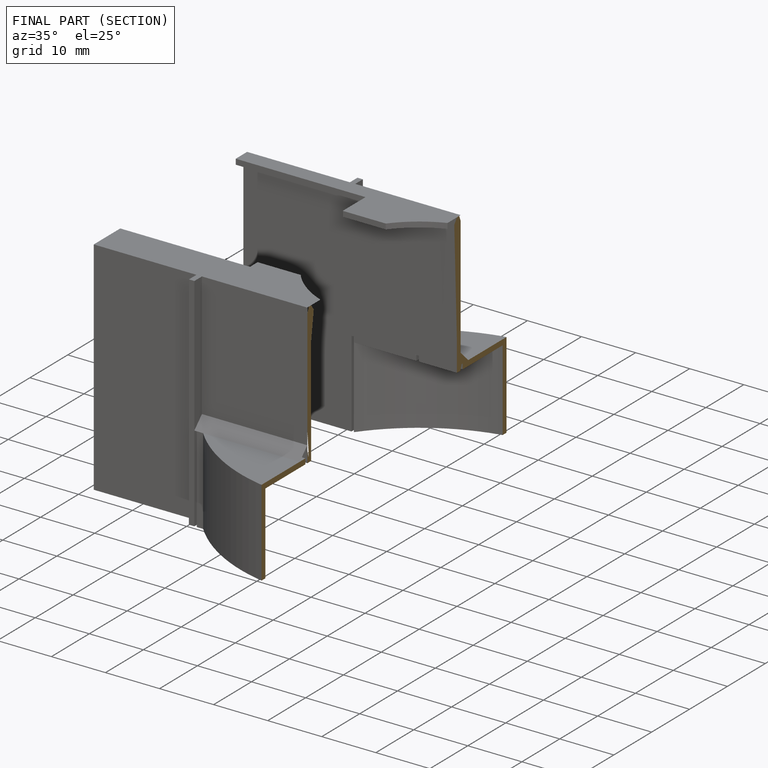
[diagram: finished part — half-section view (interior)]
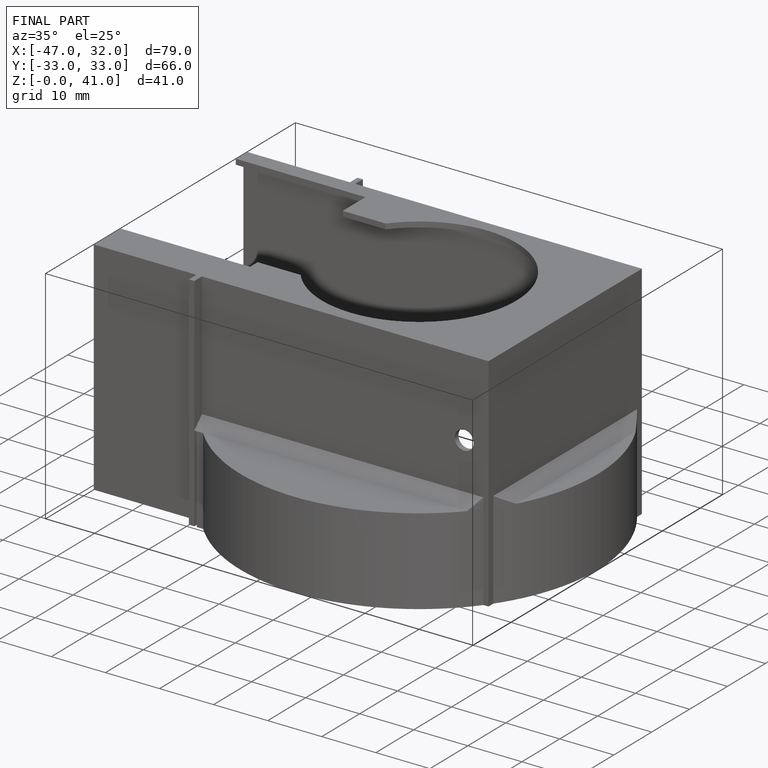
[diagram: finished part — iso view with bounding-box wireframe]
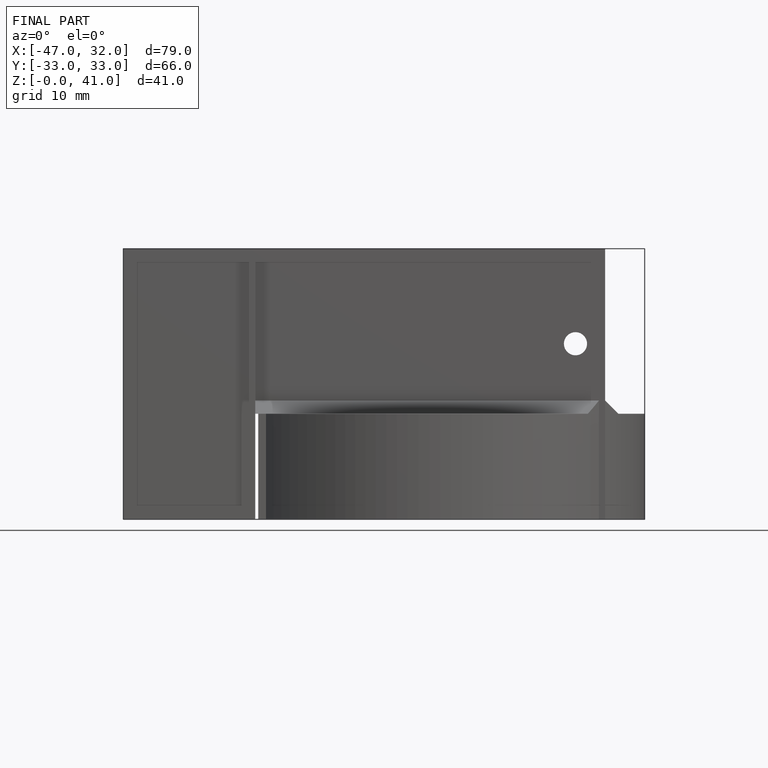
[diagram: finished part — front view with bounding-box wireframe]
